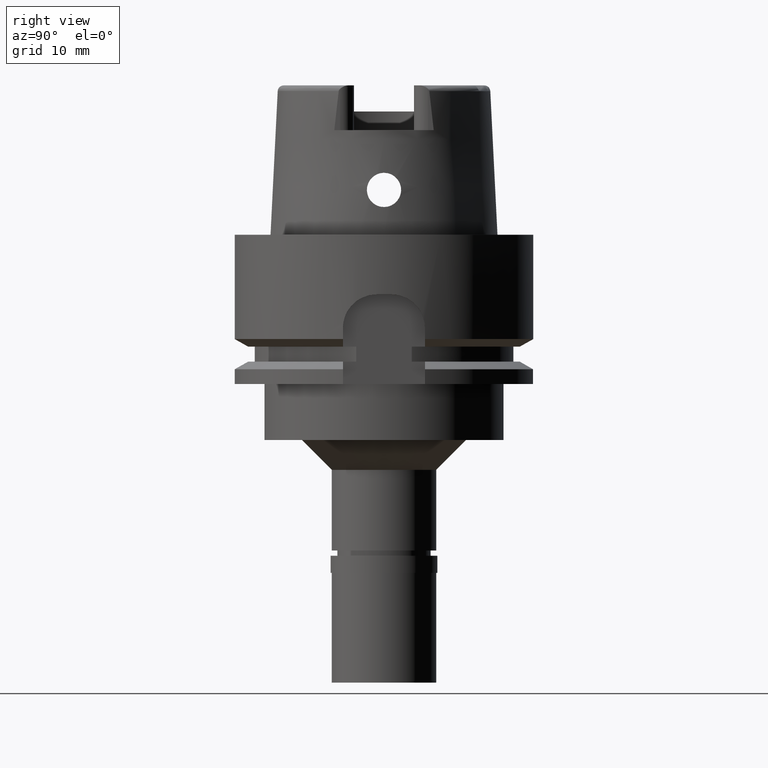
[diagram: clean part render]
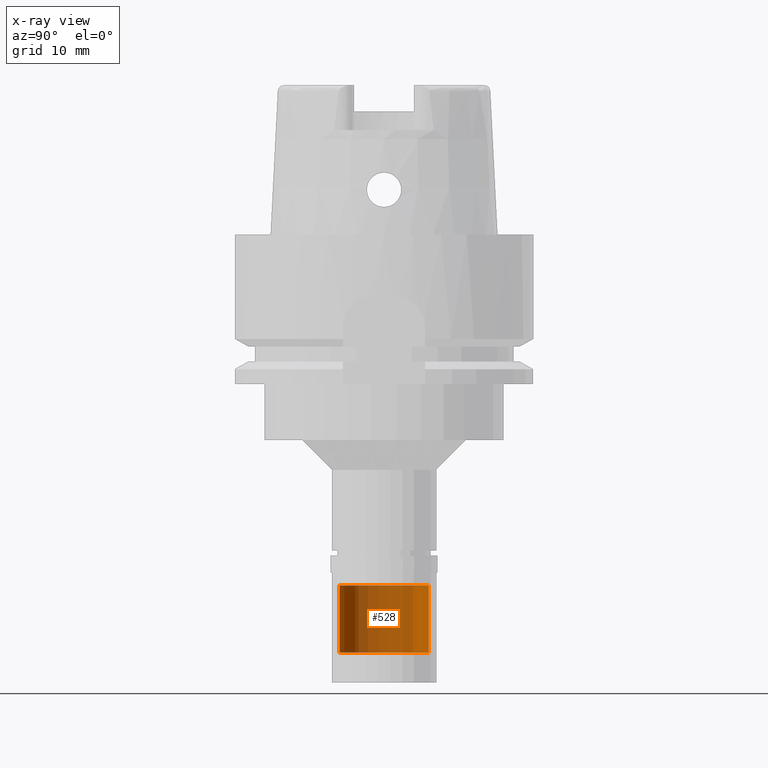
[diagram: x-ray — body ghosted, one internal face saturated and labeled with its STEP entity id]
A machine part, right view, then the same camera in x-ray: the body is ghosted and one INTERNAL B-rep face — a face not visible from any outside direction — is saturated and labeled: STEP entity #528.
In plain terms, the highlighted cylindrical surface (partial cylindrical patch) has radius 6 mm, axis along (0, 0, 1).
Its self-contained STEP definition (entity closure, byte-faithful):
#145 = CARTESIAN_POINT ( 'NONE',  ( 0.0000000000000000000, 0.0000000000000000000, -56.00000000000000000 ) ) ;
#204 = AXIS2_PLACEMENT_3D ( 'NONE', #1437, #1461, #3943 ) ;
#271 = DIRECTION ( 'NONE',  ( 0.0000000000000000000, 0.0000000000000000000, -1.000000000000000000 ) ) ;
#299 = CIRCLE ( 'NONE', #5102, 6.000000000000000000 ) ;
#337 = AXIS2_PLACEMENT_3D ( 'NONE', #145, #2698, #1457 ) ;
#396 = EDGE_CURVE ( 'NONE', #2907, #3808, #2049, .T. ) ;
#528 = ADVANCED_FACE ( 'NONE', ( #4258 ), #4313, .T. ) ;
#740 = VECTOR ( 'NONE', #4518, 1000.000000000000000 ) ;
#855 = EDGE_CURVE ( 'NONE', #2907, #2285, #299, .T. ) ;
#1437 = CARTESIAN_POINT ( 'NONE',  ( 0.0000000000000000000, 0.0000000000000000000, -59.79999999999999716 ) ) ;
#1457 = DIRECTION ( 'NONE',  ( 0.0000000000000000000, 1.000000000000000000, 0.0000000000000000000 ) ) ;
#1461 = DIRECTION ( 'NONE',  ( 0.0000000000000000000, 0.0000000000000000000, 1.000000000000000000 ) ) ;
#1546 = EDGE_LOOP ( 'NONE', ( #4776, #4852, #3849, #4478 ) ) ;
#1562 = CIRCLE ( 'NONE', #337, 6.000000000000000000 ) ;
#1925 = CARTESIAN_POINT ( 'NONE',  ( 0.0000000000000000000, 6.000000000000000000, -47.00000000000000000 ) ) ;
#1938 = DIRECTION ( 'NONE',  ( 0.0000000000000000000, -1.000000000000000000, 0.0000000000000000000 ) ) ;
#2049 = LINE ( 'NONE', #4339, #3784 ) ;
#2241 = DIRECTION ( 'NONE',  ( 0.0000000000000000000, 0.0000000000000000000, -1.000000000000000000 ) ) ;
#2285 = VERTEX_POINT ( 'NONE', #1925 ) ;
#2318 = EDGE_CURVE ( 'NONE', #2285, #3818, #4443, .T. ) ;
#2698 = DIRECTION ( 'NONE',  ( 0.0000000000000000000, 0.0000000000000000000, 1.000000000000000000 ) ) ;
#2907 = VERTEX_POINT ( 'NONE', #3111 ) ;
#3008 = CARTESIAN_POINT ( 'NONE',  ( 0.0000000000000000000, 6.000000000000000000, -56.00000000000000000 ) ) ;
#3111 = CARTESIAN_POINT ( 'NONE',  ( 0.0000000000000000000, -6.000000000000000000, -47.00000000000000000 ) ) ;
#3784 = VECTOR ( 'NONE', #2241, 1000.000000000000000 ) ;
#3808 = VERTEX_POINT ( 'NONE', #3844 ) ;
#3818 = VERTEX_POINT ( 'NONE', #3008 ) ;
#3844 = CARTESIAN_POINT ( 'NONE',  ( 0.0000000000000000000, -6.000000000000000000, -56.00000000000000000 ) ) ;
#3849 = ORIENTED_EDGE ( 'NONE', *, *, #855, .T. ) ;
#3943 = DIRECTION ( 'NONE',  ( 0.0000000000000000000, 1.000000000000000000, 0.0000000000000000000 ) ) ;
#4131 = EDGE_CURVE ( 'NONE', #3818, #3808, #1562, .T. ) ;
#4258 = FACE_OUTER_BOUND ( 'NONE', #1546, .T. ) ;
#4313 = CYLINDRICAL_SURFACE ( 'NONE', #204, 6.000000000000000000 ) ;
#4339 = CARTESIAN_POINT ( 'NONE',  ( 0.0000000000000000000, -6.000000000000000000, -47.00000000000000000 ) ) ;
#4443 = LINE ( 'NONE', #5306, #740 ) ;
#4478 = ORIENTED_EDGE ( 'NONE', *, *, #2318, .T. ) ;
#4486 = CARTESIAN_POINT ( 'NONE',  ( 0.0000000000000000000, 0.0000000000000000000, -47.00000000000000000 ) ) ;
#4518 = DIRECTION ( 'NONE',  ( 0.0000000000000000000, 0.0000000000000000000, -1.000000000000000000 ) ) ;
#4776 = ORIENTED_EDGE ( 'NONE', *, *, #4131, .T. ) ;
#4852 = ORIENTED_EDGE ( 'NONE', *, *, #396, .F. ) ;
#5102 = AXIS2_PLACEMENT_3D ( 'NONE', #4486, #271, #1938 ) ;
#5306 = CARTESIAN_POINT ( 'NONE',  ( 0.0000000000000000000, 6.000000000000000000, -47.00000000000000000 ) ) ;